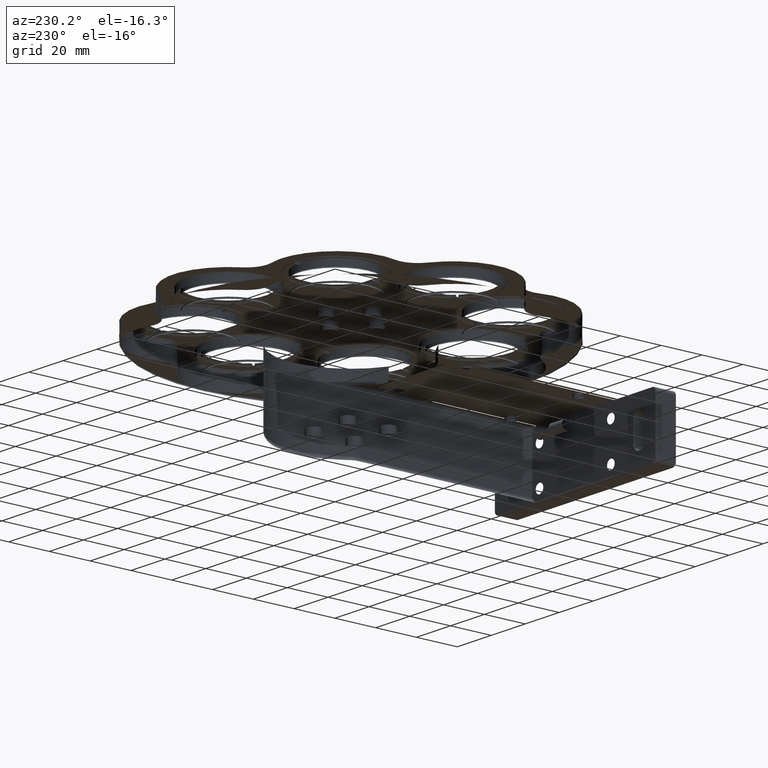
[diagram: clean part render]
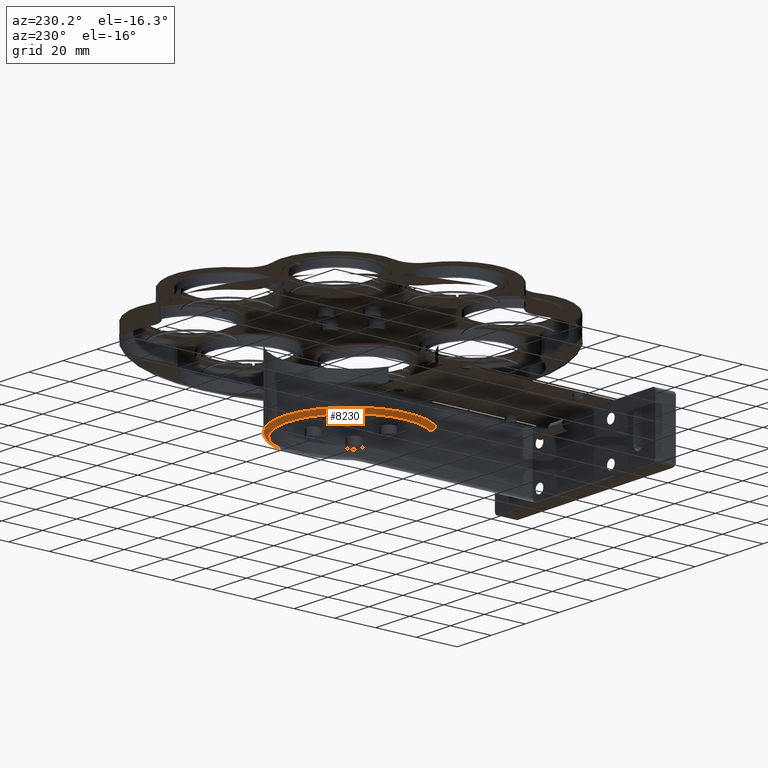
[diagram: same view with one face highlighted and labeled with its STEP entity id]
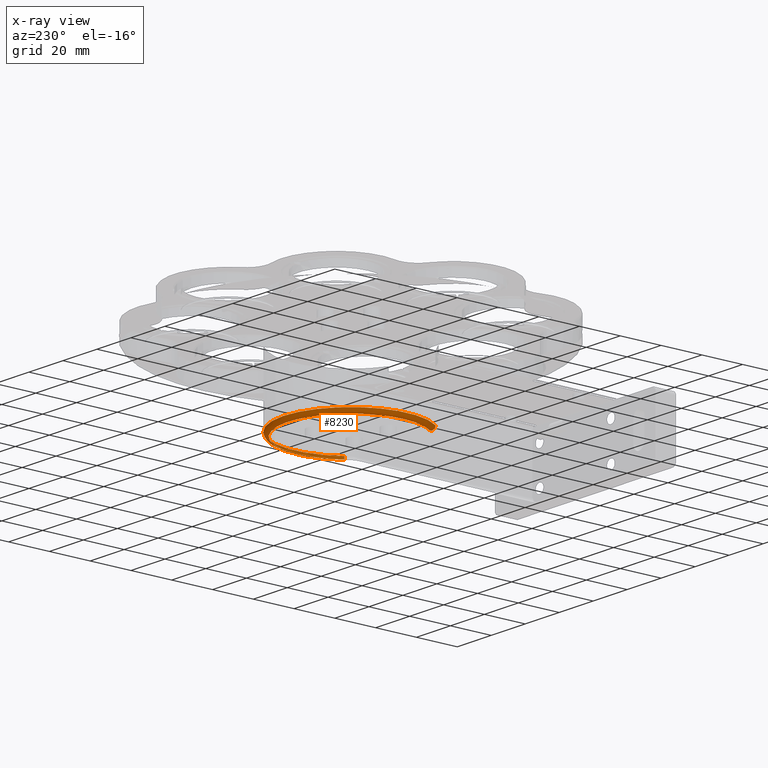
[diagram: x-ray of the same camera — body ghosted, the highlighted face saturated]
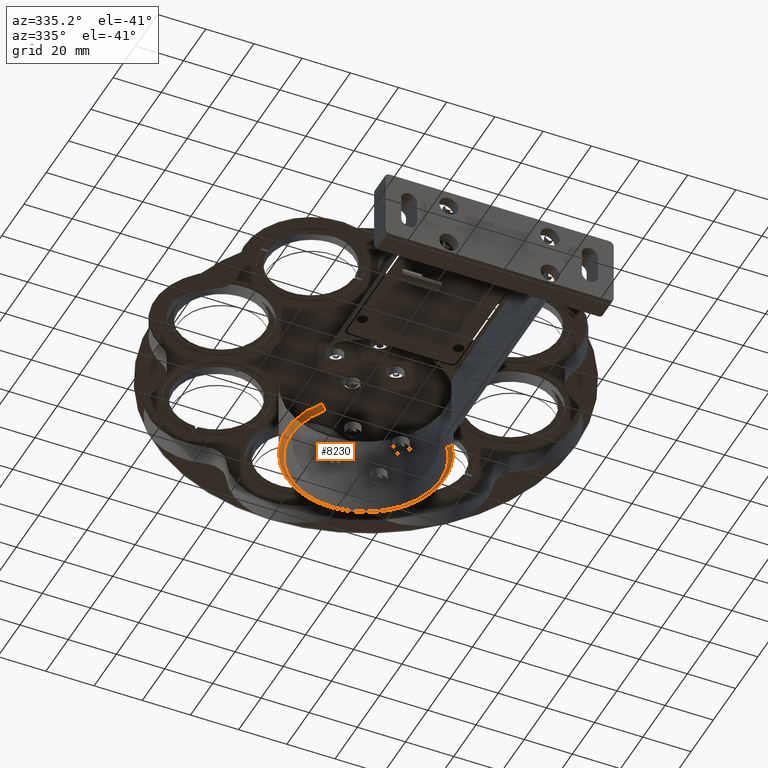
[diagram: same view with one face highlighted and labeled with its STEP entity id]
A machine part, auxiliary view. The second image highlights one B-rep face of the part: STEP entity #8230.
The next image is the same camera in x-ray: the body ghosted, the highlighted face saturated — about 0% of this face is hidden behind the body in this view.
A second angle (auxiliary view) of the same face is appended — the face is thin or edge-on in the first view.
In plain terms, the highlighted face is a freeform B-spline surface patch.
Its self-contained STEP definition (entity closure, byte-faithful):
#119 = CARTESIAN_POINT ( 'NONE',  ( 10.53283271438144375, 95.22578763127295076, 135.2499999999716636 ) ) ;
#194 = CARTESIAN_POINT ( 'NONE',  ( -46.96159308205115224, 43.05509610130579290, 134.0784271247178481 ) ) ;
#281 = CARTESIAN_POINT ( 'NONE',  ( -46.28729193400194220, 43.53635430929266192, 133.2499999999716920 ) ) ;
#582 = CARTESIAN_POINT ( 'NONE',  ( 10.45445355062458859, 67.45853934313157652, 133.2499999999716920 ) ) ;
#668 = CARTESIAN_POINT ( 'NONE',  ( 8.929555881776781945, 51.23386335644919853, 133.2499999999716920 ) ) ;
#739 = CARTESIAN_POINT ( 'NONE',  ( -3.025790631562344402, 88.09927463350501853, 133.2499999999716067 ) ) ;
#820 = CARTESIAN_POINT ( 'NONE',  ( -12.74180319100221226, 92.34711125301598145, 133.2499999999716636 ) ) ;
#895 = CARTESIAN_POINT ( 'NONE',  ( -30.69106197044605011, 91.36283979535028266, 133.2499999999716636 ) ) ;
#976 = CARTESIAN_POINT ( 'NONE',  ( -32.48593965831978636, 90.66369521972859502, 133.2499999999716636 ) ) ;
#1059 = CARTESIAN_POINT ( 'NONE',  ( -14.24416921678018966, 92.66758612309125454, 133.2499999999717204 ) ) ;
#1140 = CARTESIAN_POINT ( 'NONE',  ( -48.83955461651328989, 73.84949394082089213, 133.2499999999716351 ) ) ;
#1224 = CARTESIAN_POINT ( 'NONE',  ( -38.85560849494864044, 87.00178921112208741, 133.2499999999716351 ) ) ;
#1306 = CARTESIAN_POINT ( 'NONE',  ( -43.84868051437328518, 82.20261935534061593, 133.2499999999716636 ) ) ;
#1346 = CARTESIAN_POINT ( 'NONE',  ( 6.759337150506981473, 43.05509610130579290, 135.2499999999716636 ) ) ;
#1350 = B_SPLINE_CURVE_WITH_KNOTS ( 'NONE', 3,
 ( #3927, #5476, #10445, #8897, #13873, #14354, #5707, #11984, #3108, #668, #14587, #3186, #10756, #3259, #15723, #8069, #2123, #10681, #9308, #10831 ),
 .UNSPECIFIED., .F., .F.,
 ( 4, 1, 1, 1, 2, 2, 2, 1, 1, 1, 2, 2, 4 ),
 ( 0.000000000000000000, 0.1250000000000024147, 0.1875000000000031364, 0.2187500000000030531, 0.2343750000000035250, 0.2500000000000039968, 0.5000000000000073275, 0.6250000000000085487, 0.6875000000000091038, 0.7187500000000098810, 0.7343750000000097700, 0.7500000000000095479, 1.000000000000000000 ),
 .UNSPECIFIED. ) ;
#1386 = CARTESIAN_POINT ( 'NONE',  ( -50.57820341190375757, 67.89577162592422610, 133.2499999999716636 ) ) ;
#1469 = CARTESIAN_POINT ( 'NONE',  ( -45.90074052123406290, 79.41255193765323384, 133.2499999999716351 ) ) ;
#1510 = CARTESIAN_POINT ( 'NONE',  ( -63.63672725278667741, 67.84501847192315438, 133.2499999999716351 ) ) ;
#1522 = DIRECTION ( 'NONE',  ( 0.8139534883720920266, 0.5809300463626432265, 0.000000000000000000 ) ) ;
#1586 = CARTESIAN_POINT ( 'NONE',  ( -20.10112796577209693, 95.22578763127295076, 135.2499999999716636 ) ) ;
#1956 = CARTESIAN_POINT ( 'NONE',  ( 10.38705379943201201, 67.83575431183284365, 133.2499999999716351 ) ) ;
#2034 = CARTESIAN_POINT ( 'NONE',  ( -1.600496397098782220, 87.11037255496219700, 133.2499999999716636 ) ) ;
#2115 = CARTESIAN_POINT ( 'NONE',  ( -8.660985408636996397, 91.03766179045069862, 133.2499999999716636 ) ) ;
#2123 = CARTESIAN_POINT ( 'NONE',  ( 10.51655650581615298, 57.37117905919282634, 133.2499999999716920 ) ) ;
#2192 = CARTESIAN_POINT ( 'NONE',  ( -13.59807745350464003, 92.53791104300329096, 133.2499999999716920 ) ) ;
#2271 = CARTESIAN_POINT ( 'NONE',  ( -7.843110587115339705, 90.70149275079430140, 133.2499999999716636 ) ) ;
#2274 = CARTESIAN_POINT ( 'NONE',  ( -51.10112796577210048, 62.22578763127295787, 133.2499999999716636 ) ) ;
#2354 = CARTESIAN_POINT ( 'NONE',  ( -50.41325137751076824, 68.72883814359609289, 133.2499999999716351 ) ) ;
#2393 = ORIENTED_EDGE ( 'NONE', *, *, #2939, .T. ) ;
#2444 = CARTESIAN_POINT ( 'NONE',  ( -47.84268703015010971, 48.39048035360452360, 133.2499999999716351 ) ) ;
#2521 = CARTESIAN_POINT ( 'NONE',  ( -45.97461496800976732, 79.30112496547586431, 133.2499999999716636 ) ) ;
#2939 = EDGE_CURVE ( 'NONE', #13502, #15877, #6975, .T. ) ;
#3028 = CARTESIAN_POINT ( 'NONE',  ( 10.39207828771551334, 67.80836858494723174, 133.2499999999716636 ) ) ;
#3084 = CARTESIAN_POINT ( 'NONE',  ( -20.10112796577209693, 62.22578763127295787, 135.2499999999716636 ) ) ;
#3098 = CARTESIAN_POINT ( 'NONE',  ( 8.768345652609726315, 73.51979007888439810, 133.2499999999716351 ) ) ;
#3108 = CARTESIAN_POINT ( 'NONE',  ( 8.320619187422032326, 49.74337015299662568, 133.2499999999716920 ) ) ;
#3177 = CARTESIAN_POINT ( 'NONE',  ( 10.19844743785179553, 68.85505647098052862, 133.2499999999716920 ) ) ;
#3186 = CARTESIAN_POINT ( 'NONE',  ( 9.991310511064273925, 54.70311100467456100, 133.2499999999716636 ) ) ;
#3252 = CARTESIAN_POINT ( 'NONE',  ( -18.20536870244568917, 93.22575519946924771, 133.2499999999716351 ) ) ;
#3259 = CARTESIAN_POINT ( 'NONE',  ( 10.41677255784004608, 56.77322680005310218, 133.2499999999716920 ) ) ;
#3328 = CARTESIAN_POINT ( 'NONE',  ( -24.92528174707842581, 92.84977955551802609, 133.2499999999716636 ) ) ;
#3408 = CARTESIAN_POINT ( 'NONE',  ( -7.006695525339795338, 90.33325524480753188, 133.2499999999716636 ) ) ;
#3424 = ORIENTED_EDGE ( 'NONE', *, *, #9761, .F. ) ;
#3488 = CARTESIAN_POINT ( 'NONE',  ( -31.45361676834384212, 91.07231167174975894, 133.2499999999716920 ) ) ;
#3566 = CARTESIAN_POINT ( 'NONE',  ( -31.30736171983325278, 91.12954848688157483, 133.2499999999716920 ) ) ;
#3737 = CARTESIAN_POINT ( 'NONE',  ( -44.98571288952099678, 80.72641919987306380, 133.2499999999716920 ) ) ;
#3927 = CARTESIAN_POINT ( 'NONE',  ( 5.131430173762794311, 44.21695619403107003, 133.2499999999716636 ) ) ;
#3984 = CARTESIAN_POINT ( 'NONE',  ( -47.97695233306718876, 48.66300612615909671, 133.2499999999716920 ) ) ;
#4148 = CARTESIAN_POINT ( 'NONE',  ( 5.131430173762794311, 44.21695619403107003, 133.2499999999716636 ) ) ;
#4478 = CARTESIAN_POINT ( 'NONE',  ( -0.1242962416067872611, 85.97334017979459020, 133.2499999999716636 ) ) ;
#4554 = CARTESIAN_POINT ( 'NONE',  ( -21.04900759743532390, 93.22580384717484492, 133.2499999999716920 ) ) ;
#4632 = CARTESIAN_POINT ( 'NONE',  ( 5.988148164028827658, 78.96957192232073908, 133.2499999999716636 ) ) ;
#4719 = CARTESIAN_POINT ( 'NONE',  ( -22.46502414927979530, 93.16112431171544017, 133.2499999999716636 ) ) ;
#4799 = CARTESIAN_POINT ( 'NONE',  ( -14.43114671027998419, 92.70286358434030660, 133.2499999999716920 ) ) ;
#4802 = CARTESIAN_POINT ( 'NONE',  ( -50.92143966741855365, 58.85078834639730871, 133.2499999999716636 ) ) ;
#4836 = CARTESIAN_POINT ( 'NONE',  ( 5.131430173762795199, 44.21695619403107003, 135.2499999999716636 ) ) ;
#4875 = CARTESIAN_POINT ( 'NONE',  ( -50.56049255743268844, 67.99016998077738094, 133.2499999999716636 ) ) ;
#4958 = CARTESIAN_POINT ( 'NONE',  ( -49.77948166514816819, 71.27989605620926739, 133.2499999999716351 ) ) ;
#4961 = CARTESIAN_POINT ( 'NONE',  ( -50.74957915145942167, 57.56933972803486910, 133.2499999999716636 ) ) ;
#5078 = CARTESIAN_POINT ( 'NONE',  ( -64.75778128024408886, 67.98971525957028916, 134.0784271247178481 ) ) ;
#5157 = CARTESIAN_POINT ( 'NONE',  ( 6.085036002457757220, 43.53635430929266192, 133.2499999999716920 ) ) ;
#5188 = EDGE_CURVE ( 'NONE', #9828, #12411, #7028, .T. ) ;
#5476 = CARTESIAN_POINT ( 'NONE',  ( 5.594616343713482820, 44.86593622382579127, 133.2499999999716351 ) ) ;
#5543 = CARTESIAN_POINT ( 'NONE',  ( 9.329061003959242981, 71.98887158467937297, 133.2499999999716636 ) ) ;
#5699 = CARTESIAN_POINT ( 'NONE',  ( -14.39848965176672735, 92.69677163124522679, 133.2499999999716920 ) ) ;
#5707 = CARTESIAN_POINT ( 'NONE',  ( 7.505699434930819258, 48.12355445157497513, 133.2499999999716920 ) ) ;
#5742 = CARTESIAN_POINT ( 'NONE',  ( -51.10112796577210048, 62.22578763127295787, 133.2499999999716636 ) ) ;
#5775 = CARTESIAN_POINT ( 'NONE',  ( -8.477421656250941240, 90.96421428203346693, 133.2499999999716636 ) ) ;
#5845 = CARTESIAN_POINT ( 'NONE',  ( -9.624801912299050244, 91.41924652445074173, 133.2499999999716636 ) ) ;
#5922 = CARTESIAN_POINT ( 'NONE',  ( -36.67962692797878077, 88.42091238416630006, 133.2499999999716920 ) ) ;
#6010 = CARTESIAN_POINT ( 'NONE',  ( -16.32437770679559108, 93.05324399436051408, 133.2499999999716920 ) ) ;
#6022 = CIRCLE ( 'NONE', #8106, 33.00000000000000000 ) ;
#6093 = CARTESIAN_POINT ( 'NONE',  ( -49.37797212430316307, 52.00236129338967572, 133.2499999999716920 ) ) ;
#6170 = CARTESIAN_POINT ( 'NONE',  ( -46.01216582014816225, 79.24408169897341736, 133.2499999999716351 ) ) ;
#6173 = CARTESIAN_POINT ( 'NONE',  ( -46.26026622427583845, 45.51520737730713506, 133.2499999999716920 ) ) ;
#6257 = CARTESIAN_POINT ( 'NONE',  ( -47.88811971279682211, 48.48194363583876054, 133.2499999999717204 ) ) ;
#6294 = CARTESIAN_POINT ( 'NONE',  ( 24.55552534869991277, 67.98971525957031758, 135.2499999999716636 ) ) ;
#6333 = CARTESIAN_POINT ( 'NONE',  ( -45.78942824983533200, 79.57928438883311628, 133.2499999999716636 ) ) ;
#6337 = CARTESIAN_POINT ( 'NONE',  ( -50.79288607099013575, 57.86387279561542840, 133.2499999999716636 ) ) ;
#6414 = CARTESIAN_POINT ( 'NONE',  ( -46.62115670798456080, 78.31262258203565807, 133.2499999999716636 ) ) ;
#6532 = CARTESIAN_POINT ( 'NONE',  ( 21.84906151145918329, 67.64038631240077848, 133.2499999999716636 ) ) ;
#6614 = CARTESIAN_POINT ( 'NONE',  ( -50.73508864592565715, 95.22578763127295076, 134.0784271247178481 ) ) ;
#6673 = CARTESIAN_POINT ( 'NONE',  ( 10.52285154317308624, 67.05000850975066840, 133.2499999999716636 ) ) ;
#6723 = VERTEX_POINT ( 'NONE', #5742 ) ;
#6829 = CARTESIAN_POINT ( 'NONE',  ( 10.89887203422790307, 63.17375490005802874, 133.2499999999716636 ) ) ;
#6905 = CARTESIAN_POINT ( 'NONE',  ( 3.332185119453405342, 82.63304241621108304, 133.2499999999716636 ) ) ;
#6975 = CIRCLE ( 'NONE', #13505, 2.000000000000000000 ) ;
#6981 = CARTESIAN_POINT ( 'NONE',  ( 6.093996787135372628, 78.80428659346300435, 133.2499999999717204 ) ) ;
#7028 = CIRCLE ( 'NONE', #14851, 1.999999999999998224 ) ;
#7061 = CARTESIAN_POINT ( 'NONE',  ( -26.73039680548950514, 92.52536303491056913, 133.2499999999716351 ) ) ;
#7140 = CARTESIAN_POINT ( 'NONE',  ( -11.04701954096300121, 91.90414133062988356, 133.2499999999716636 ) ) ;
#7220 = CARTESIAN_POINT ( 'NONE',  ( 6.807977673387280326, 77.63337942516729129, 133.2499999999716920 ) ) ;
#7300 = CARTESIAN_POINT ( 'NONE',  ( -50.92861677274335364, 66.00236258406333434, 133.2499999999716067 ) ) ;
#7345 = DIRECTION ( 'NONE',  ( 0.8139534883720940250, -0.5809300463626403399, 0.000000000000000000 ) ) ;
#7389 = CARTESIAN_POINT ( 'NONE',  ( -48.10883597124076516, 48.93515317433934797, 133.2499999999716351 ) ) ;
#7500 = CARTESIAN_POINT ( 'NONE',  ( 23.43447132124246934, 67.84501847192316859, 133.2499999999716351 ) ) ;
#7548 = CARTESIAN_POINT ( 'NONE',  ( -50.11629343188322139, 54.30790622517498178, 133.2499999999717204 ) ) ;
#7586 = CARTESIAN_POINT ( 'NONE',  ( -46.96159308205115934, 43.05509610130578579, 135.2499999999716636 ) ) ;
#7628 = CARTESIAN_POINT ( 'NONE',  ( -48.91300212494954280, 73.66593018840580953, 133.2499999999716920 ) ) ;
#7668 = CARTESIAN_POINT ( 'NONE',  ( 5.131430173762793423, 44.21695619403107003, 133.2499999999716636 ) ) ;
#7715 = CARTESIAN_POINT ( 'NONE',  ( -48.96512211909123380, 50.86729483388921835, 133.2499999999716636 ) ) ;
#7832 = CARTESIAN_POINT ( 'NONE',  ( 9.763802291173943715, 94.39736050652675203, 133.2499999999716351 ) ) ;
#8058 = CARTESIAN_POINT ( 'NONE',  ( 8.745396074703897682, 73.57827643384412397, 133.2499999999716351 ) ) ;
#8069 = CARTESIAN_POINT ( 'NONE',  ( 10.50040282755328214, 57.27033899112391424, 133.2499999999717204 ) ) ;
#8106 = AXIS2_PLACEMENT_3D ( 'NONE', #3084, #14173, #10811 ) ;
#8219 = CARTESIAN_POINT ( 'NONE',  ( -25.68370348491784938, 92.71899489033654618, 133.2499999999716636 ) ) ;
#8230 = ADVANCED_FACE ( 'NONE', ( #12498 ), #10669, .F. ) ;
#8299 = CARTESIAN_POINT ( 'NONE',  ( -2.747631208189036833, 87.91408791531755185, 133.2499999999716636 ) ) ;
#8384 = CARTESIAN_POINT ( 'NONE',  ( -8.568537507042018220, 91.00078474376401516, 133.2499999999716636 ) ) ;
#8461 = CARTESIAN_POINT ( 'NONE',  ( 5.917215619706174934, 79.07957289167768522, 133.2499999999716636 ) ) ;
#8537 = CARTESIAN_POINT ( 'NONE',  ( -4.014293015135691256, 88.74581637357680108, 133.2499999999716351 ) ) ;
#8631 = CARTESIAN_POINT ( 'NONE',  ( -50.83446288470491226, 58.15971952843825221, 133.2499999999716636 ) ) ;
#8708 = CARTESIAN_POINT ( 'NONE',  ( -51.10112796577210048, 62.22578763127295787, 133.2499999999716636 ) ) ;
#8741 = CARTESIAN_POINT ( 'NONE',  ( -50.73508864592563583, 95.22578763127295076, 135.2499999999716636 ) ) ;
#8807 = CARTESIAN_POINT ( 'NONE',  ( 10.89887203422790307, 62.22578763127295787, 133.2499999999716636 ) ) ;
#8821 = CARTESIAN_POINT ( 'NONE',  ( -20.10112796577208982, 93.22578763127295076, 133.2499999999716636 ) ) ;
#8897 = CARTESIAN_POINT ( 'NONE',  ( 6.945810747494057580, 47.06843496664491511, 133.2499999999716351 ) ) ;
#8909 = CARTESIAN_POINT ( 'NONE',  ( -49.96605822271813935, 94.39736050652675203, 133.2499999999716351 ) ) ;
#8951 = CARTESIAN_POINT ( 'NONE',  ( -48.20859557918679172, 75.32022007187100598, 133.2499999999716636 ) ) ;
#9051 = CARTESIAN_POINT ( 'NONE',  ( 8.802632889833654772, 73.43202138533204959, 133.2499999999716636 ) ) ;
#9072 = CARTESIAN_POINT ( 'NONE',  ( -45.33368610530698817, 44.21695619403107003, 133.2499999999716636 ) ) ;
#9219 = CARTESIAN_POINT ( 'NONE',  ( 10.41848564074994954, 67.66264428964835531, 133.2499999999716351 ) ) ;
#9308 = CARTESIAN_POINT ( 'NONE',  ( 10.89887203422790307, 60.63079332034373436, 133.2499999999716920 ) ) ;
#9453 = CARTESIAN_POINT ( 'NONE',  ( -31.39513041338473798, 91.09526124965645977, 133.2499999999716636 ) ) ;
#9522 = ORIENTED_EDGE ( 'NONE', *, *, #15117, .F. ) ;
#9524 = CARTESIAN_POINT ( 'NONE',  ( -8.265317988176791530, 90.87792201907288359, 133.2499999999716920 ) ) ;
#9608 = CARTESIAN_POINT ( 'NONE',  ( -3.082833898063749523, 88.13682548564328556, 133.2499999999716351 ) ) ;
#9693 = CARTESIAN_POINT ( 'NONE',  ( -36.84491225682961613, 88.31506376106561618, 133.2499999999716636 ) ) ;
#9761 = EDGE_CURVE ( 'NONE', #13381, #6723, #9792, .T. ) ;
#9771 = CARTESIAN_POINT ( 'NONE',  ( -14.33674561627660715, 92.68515222293221711, 133.2499999999716636 ) ) ;
#9792 = B_SPLINE_CURVE_WITH_KNOTS ( 'NONE', 3,
 ( #15409, #6829, #14107, #14341, #6673, #582, #9219, #14184, #3028, #1956, #3177, #15244, #5543, #10516, #14266, #9051, #3098, #8058, #13041, #13205, #11893, #7220, #10907, #6981, #4632, #8461, #15714, #14490, #6905, #10824, #4478, #2034, #15875, #8299, #11976, #739, #9608, #8537, #14578, #3408, #2271, #9524, #5775, #8384, #12215, #2115, #5845, #7140, #820, #2192, #10746, #1059, #9771, #5699, #4799, #6010, #3252, #4554, #4719, #15791, #3328, #10673, #13522, #13283, #8219, #14736, #7061, #12055, #13367, #895, #15642, #3566, #9453, #3488, #12133, #976, #10988, #14420, #13443, #5922, #9693, #14660, #15956, #1224, #12376, #14898, #1306, #3737, #11143, #6333, #1469, #2521, #6170, #6414, #10095, #8951, #15062, #9935, #1140, #16117, #13679, #7628, #11310, #4958, #13604, #2354, #11389, #16036, #4875, #9849, #1386, #7300, #13759, #8708 ),
 .UNSPECIFIED., .F., .F.,
 ( 4, 1, 1, 1, 1, 1, 2, 2, 1, 1, 1, 1, 1, 2, 2, 1, 1, 1, 1, 2, 2, 2, 1, 1, 1, 1, 2, 2, 1, 1, 1, 1, 1, 2, 2, 1, 1, 1, 1, 1, 2, 2, 2, 1, 1, 1, 1, 1, 2, 2, 1, 1, 1, 1, 1, 2, 2, 1, 1, 1, 1, 2, 2, 2, 1, 1, 1, 1, 2, 2, 1, 1, 1, 1, 1, 2, 2, 1, 1, 1, 1, 1, 2, 2, 4 ),
 ( 0.000000000000000000, 0.03124999999999455991, 0.04687499999999206884, 0.05468749999999081984, 0.05859374999999019534, 0.06054687499999011208, 0.06152343749998984840, 0.06249999999998959166, 0.09374999999999006350, 0.1093749999999902994, 0.1171874999999902162, 0.1210937499999901745, 0.1230468749999901468, 0.1240234374999901468, 0.1249999999999901468, 0.1562499999999890365, 0.1718749999999886757, 0.1796874999999884814, 0.1835937499999883704, 0.1855468749999881484, 0.1874999999999879263, 0.2499999999999863998, 0.2812499999999856226, 0.2968749999999851230, 0.3046874999999848455, 0.3085937499999847344, 0.3105468749999846789, 0.3124999999999846234, 0.3437499999999810707, 0.3593749999999792943, 0.3671874999999784617, 0.3710937499999781286, 0.3730468749999779066, 0.3740234374999779066, 0.3749999999999779066, 0.4062499999999815148, 0.4218749999999833467, 0.4296874999999842348, 0.4335937499999846234, 0.4355468749999848455, 0.4365234374999849565, 0.4374999999999850675, 0.4999999999999936717, 0.5312499999999980016, 0.5468750000000000000, 0.5546875000000011102, 0.5585937500000015543, 0.5605468750000018874, 0.5615234375000021094, 0.5625000000000022204, 0.5937500000000071054, 0.6093750000000096589, 0.6171875000000109912, 0.6210937500000116573, 0.6230468750000119904, 0.6240234375000121014, 0.6250000000000121014, 0.6562500000000177636, 0.6718750000000205391, 0.6796875000000218714, 0.6835937500000223155, 0.6855468750000226485, 0.6875000000000229816, 0.7500000000000357492, 0.7812500000000420775, 0.7968750000000452971, 0.8046875000000468514, 0.8085937500000474065, 0.8105468750000477396, 0.8125000000000480727, 0.8437500000000491829, 0.8593750000000498490, 0.8671875000000500711, 0.8710937500000500711, 0.8730468750000500711, 0.8740234375000499600, 0.8750000000000497380, 0.9062500000000350830, 0.9218750000000277556, 0.9296875000000239808, 0.9335937500000218714, 0.9355468750000206501, 0.9365234375000200950, 0.9375000000000194289, 1.000000000000000000 ),
 .UNSPECIFIED. ) ;
#9813 = DIRECTION ( 'NONE',  ( 0.5809300463626413391, 0.8139534883720932479, 0.000000000000000000 ) ) ;
#9828 = VERTEX_POINT ( 'NONE', #10969 ) ;
#9849 = CARTESIAN_POINT ( 'NONE',  ( -50.57211196574505152, 67.92842594528283939, 133.2499999999717204 ) ) ;
#9935 = CARTESIAN_POINT ( 'NONE',  ( -48.75326235353457349, 74.06159760892006716, 133.2499999999716636 ) ) ;
#10052 = CARTESIAN_POINT ( 'NONE',  ( -20.10112796577210048, 94.39736050652679467, 133.2499999999716920 ) ) ;
#10095 = CARTESIAN_POINT ( 'NONE',  ( -47.41060468945490669, 76.96105123408791826, 133.2499999999716920 ) ) ;
#10132 = CARTESIAN_POINT ( 'NONE',  ( 8.676229036796389238, 93.22578763127295076, 133.2499999999716636 ) ) ;
#10208 = CARTESIAN_POINT ( 'NONE',  ( -45.33368610530696685, 44.21695619403104160, 133.2499999999716636 ) ) ;
#10445 = CARTESIAN_POINT ( 'NONE',  ( 6.250035433049941247, 45.86323102919521943, 133.2499999999716920 ) ) ;
#10516 = CARTESIAN_POINT ( 'NONE',  ( 9.035924198294758014, 72.81572163593938285, 133.2499999999716351 ) ) ;
#10669 =( BOUNDED_SURFACE ( )  B_SPLINE_SURFACE ( 3, 3, ( 
 ( #1346, #6294, #119, #1586, #8741, #15188, #7586 ),
 ( #13716, #11346, #12663, #11512, #6614, #5078, #194 ),
 ( #5157, #7500, #7832, #10052, #8909, #1510, #281 ),
 ( #7668, #6532, #10132, #8821, #13799, #15017, #9072 ) ),
 .UNSPECIFIED., .F., .F., .F. ) 
 B_SPLINE_SURFACE_WITH_KNOTS ( ( 4, 4 ),
 ( 4, 3, 4 ),
 ( 0.000000000000000000, 1.000000000000000000 ),
 ( 0.000000000000000000, 0.5000000000000000000, 1.000000000000000000 ),
 .UNSPECIFIED. ) 
 GEOMETRIC_REPRESENTATION_ITEM ( )  RATIONAL_B_SPLINE_SURFACE ( (
 ( 1.000000000000000000, 0.6384999376068964949, 0.6384999376068964949, 1.000000000000000000, 0.6384999376068964949, 0.6384999376068964949, 1.000000000000000000),
 ( 0.8047378541243646044, 0.5138250696483145363, 0.5138250696483145363, 0.8047378541243646044, 0.5138250696483145363, 0.5138250696483145363, 0.8047378541243646044),
 ( 0.8047378541243646044, 0.5138250696483145363, 0.5138250696483145363, 0.8047378541243646044, 0.5138250696483145363, 0.5138250696483145363, 0.8047378541243646044),
 ( 1.000000000000000000, 0.6384999376068964949, 0.6384999376068964949, 1.000000000000000000, 0.6384999376068964949, 0.6384999376068964949, 1.000000000000000000) ) ) 
 REPRESENTATION_ITEM ( '' )  SURFACE ( )  );
#10673 = CARTESIAN_POINT ( 'NONE',  ( -25.33384373271743328, 92.78137579872314689, 133.2499999999716636 ) ) ;
#10681 = CARTESIAN_POINT ( 'NONE',  ( 10.77653106513614212, 59.04541869105951690, 133.2499999999716636 ) ) ;
#10746 = CARTESIAN_POINT ( 'NONE',  ( -14.02843519412655660, 92.62563964519553394, 133.2499999999716636 ) ) ;
#10756 = CARTESIAN_POINT ( 'NONE',  ( 10.28832393215446217, 56.07998902913976735, 133.2499999999716636 ) ) ;
#10811 = DIRECTION ( 'NONE',  ( 1.000000000000000000, 0.000000000000000000, 0.000000000000000000 ) ) ;
#10824 = CARTESIAN_POINT ( 'NONE',  ( 1.062680816789609128, 84.90262556397840399, 133.2499999999716920 ) ) ;
#10831 = CARTESIAN_POINT ( 'NONE',  ( 10.89887203422790307, 62.22578763127295787, 133.2499999999716636 ) ) ;
#10907 = CARTESIAN_POINT ( 'NONE',  ( 6.337125554075333511, 78.41663370237235142, 133.2499999999716636 ) ) ;
#10969 = CARTESIAN_POINT ( 'NONE',  ( 6.759337150506983249, 43.05509610130579290, 135.2499999999716636 ) ) ;
#10988 = CARTESIAN_POINT ( 'NONE',  ( -33.91041722523218738, 90.01497585072416996, 133.2499999999716351 ) ) ;
#10991 = CARTESIAN_POINT ( 'NONE',  ( -51.05525010236267747, 60.23596508113880077, 133.2499999999716351 ) ) ;
#11143 = CARTESIAN_POINT ( 'NONE',  ( -45.52619540792547070, 79.96547072531687661, 133.2499999999716920 ) ) ;
#11228 = CARTESIAN_POINT ( 'NONE',  ( -50.48651957109487398, 55.87484798958656995, 133.2499999999717204 ) ) ;
#11310 = CARTESIAN_POINT ( 'NONE',  ( -49.29458685896081960, 72.70211368481871261, 133.2499999999716351 ) ) ;
#11346 = CARTESIAN_POINT ( 'NONE',  ( 24.55552534869990922, 67.98971525957031758, 134.0784271247178481 ) ) ;
#11389 = CARTESIAN_POINT ( 'NONE',  ( -50.50097997969911745, 68.29848040294830014, 133.2499999999716351 ) ) ;
#11512 = CARTESIAN_POINT ( 'NONE',  ( -20.10112796577210048, 95.22578763127295076, 134.0784271247178481 ) ) ;
#11568 = ORIENTED_EDGE ( 'NONE', *, *, #5188, .F. ) ;
#11607 = DIRECTION ( 'NONE',  ( 0.5809300463626420052, -0.8139534883720930258, -0.000000000000000000 ) ) ;
#11893 = CARTESIAN_POINT ( 'NONE',  ( 7.688060253739338101, 76.03507689066202602, 133.2499999999716636 ) ) ;
#11976 = CARTESIAN_POINT ( 'NONE',  ( -2.914363659378444105, 88.02540018672402766, 133.2499999999716920 ) ) ;
#11984 = CARTESIAN_POINT ( 'NONE',  ( 7.550356286333355982, 48.21131347729453154, 133.2499999999716636 ) ) ;
#12055 = CARTESIAN_POINT ( 'NONE',  ( -28.19296763815038886, 92.18081613595609269, 133.2499999999716920 ) ) ;
#12133 = CARTESIAN_POINT ( 'NONE',  ( -31.48163034668612070, 91.06127276872325638, 133.2499999999716636 ) ) ;
#12195 = EDGE_CURVE ( 'NONE', #6723, #15877, #15753, .T. ) ;
#12215 = CARTESIAN_POINT ( 'NONE',  ( -8.629329025071472259, 91.02507351009968772, 133.2499999999716636 ) ) ;
#12218 = CARTESIAN_POINT ( 'NONE',  ( -51.10112796577211469, 61.42846930890006973, 133.2499999999716920 ) ) ;
#12376 = CARTESIAN_POINT ( 'NONE',  ( -40.50838275061931171, 85.65910071661009795, 133.2499999999716920 ) ) ;
#12379 = CARTESIAN_POINT ( 'NONE',  ( -48.40700741468897661, 49.57403614232492117, 133.2499999999716636 ) ) ;
#12411 = VERTEX_POINT ( 'NONE', #4148 ) ;
#12498 = FACE_OUTER_BOUND ( 'NONE', #12939, .T. ) ;
#12565 = ORIENTED_EDGE ( 'NONE', *, *, #14520, .F. ) ;
#12630 = CARTESIAN_POINT ( 'NONE',  ( -50.76421240635923482, 57.66671399989597546, 133.2499999999716636 ) ) ;
#12663 = CARTESIAN_POINT ( 'NONE',  ( 10.53283271438144553, 95.22578763127295076, 134.0784271247178481 ) ) ;
#12939 = EDGE_LOOP ( 'NONE', ( #2393, #15730, #3424, #12565, #11568, #9522 ) ) ;
#13041 = CARTESIAN_POINT ( 'NONE',  ( 8.734357171677149978, 73.60629001218823930, 133.2499999999716636 ) ) ;
#13205 = CARTESIAN_POINT ( 'NONE',  ( 8.336779622717948257, 74.61059932378010728, 133.2499999999716636 ) ) ;
#13283 = CARTESIAN_POINT ( 'NONE',  ( -25.62541304550652299, 92.72960935376104885, 133.2499999999716067 ) ) ;
#13367 = CARTESIAN_POINT ( 'NONE',  ( -29.86421191919139773, 91.65597660102223188, 133.2499999999716636 ) ) ;
#13381 = VERTEX_POINT ( 'NONE', #8807 ) ;
#13443 = CARTESIAN_POINT ( 'NONE',  ( -36.29197403690257318, 88.66404115109403961, 133.2499999999716636 ) ) ;
#13502 = VERTEX_POINT ( 'NONE', #15571 ) ;
#13505 = AXIS2_PLACEMENT_3D ( 'NONE', #15363, #11607, #1522 ) ;
#13522 = CARTESIAN_POINT ( 'NONE',  ( -25.53796605260898289, 92.74540467417261880, 133.2499999999716067 ) ) ;
#13604 = CARTESIAN_POINT ( 'NONE',  ( -50.22245158752946281, 69.58511240613825066, 133.2499999999716636 ) ) ;
#13679 = CARTESIAN_POINT ( 'NONE',  ( -48.90041384459320284, 73.69758657198143226, 133.2499999999717204 ) ) ;
#13716 = CARTESIAN_POINT ( 'NONE',  ( 6.759337150506982361, 43.05509610130579290, 134.0784271247178481 ) ) ;
#13759 = CARTESIAN_POINT ( 'NONE',  ( -51.10112796577211469, 64.12207770913778404, 133.2499999999716636 ) ) ;
#13762 = CARTESIAN_POINT ( 'NONE',  ( -47.08167812260502672, 46.87670013203619135, 133.2499999999716636 ) ) ;
#13799 = CARTESIAN_POINT ( 'NONE',  ( -48.87848496834057244, 93.22578763127295076, 133.2499999999716636 ) ) ;
#13873 = CARTESIAN_POINT ( 'NONE',  ( 7.276478332270676752, 47.68146026816611283, 133.2499999999717204 ) ) ;
#14107 = CARTESIAN_POINT ( 'NONE',  ( 10.83418033684212745, 64.58983717974385286, 133.2499999999716636 ) ) ;
#14173 = DIRECTION ( 'NONE',  ( -0.000000000000000000, -0.000000000000000000, -1.000000000000000000 ) ) ;
#14184 = CARTESIAN_POINT ( 'NONE',  ( 10.40269176931787065, 67.75008345168978963, 133.2499999999716920 ) ) ;
#14266 = CARTESIAN_POINT ( 'NONE',  ( 8.881676535912372827, 73.22695363925377876, 133.2499999999716920 ) ) ;
#14341 = CARTESIAN_POINT ( 'NONE',  ( 10.64549621946695446, 66.23166308160016058, 133.2499999999716636 ) ) ;
#14354 = CARTESIAN_POINT ( 'NONE',  ( 7.414502995936632423, 47.94641896870297160, 133.2499999999716636 ) ) ;
#14420 = CARTESIAN_POINT ( 'NONE',  ( -35.50871975971970329, 89.13489327038718102, 133.2499999999716636 ) ) ;
#14490 = CARTESIAN_POINT ( 'NONE',  ( 4.674873614069651850, 80.98026816043615383, 133.2499999999716351 ) ) ;
#14520 = EDGE_CURVE ( 'NONE', #12411, #13381, #1350, .T. ) ;
#14578 = CARTESIAN_POINT ( 'NONE',  ( -5.365864363178112662, 89.53526435511558645, 133.2499999999716636 ) ) ;
#14587 = CARTESIAN_POINT ( 'NONE',  ( 9.667957002040079573, 53.53938272775259577, 133.2499999999716920 ) ) ;
#14660 = CARTESIAN_POINT ( 'NONE',  ( -36.95491322618181584, 88.24413121674699312, 133.2499999999716351 ) ) ;
#14736 = CARTESIAN_POINT ( 'NONE',  ( -25.71109464633169139, 92.71396939647665647, 133.2499999999716636 ) ) ;
#14819 = CARTESIAN_POINT ( 'NONE',  ( -45.33368610530696685, 44.21695619403104160, 133.2499999999716636 ) ) ;
#14851 = AXIS2_PLACEMENT_3D ( 'NONE', #4836, #9813, #7345 ) ;
#14898 = CARTESIAN_POINT ( 'NONE',  ( -42.77796589852295739, 83.38959641377888943, 133.2499999999716636 ) ) ;
#15017 = CARTESIAN_POINT ( 'NONE',  ( -62.05131744300338426, 67.64038631240077848, 133.2499999999716636 ) ) ;
#15062 = CARTESIAN_POINT ( 'NONE',  ( -48.57683308522350529, 74.48380501002641552, 133.2499999999716636 ) ) ;
#15117 = EDGE_CURVE ( 'NONE', #13502, #9828, #6022, .T. ) ;
#15188 = CARTESIAN_POINT ( 'NONE',  ( -64.75778128024408886, 67.98971525957028916, 135.2499999999716636 ) ) ;
#15244 = CARTESIAN_POINT ( 'NONE',  ( 9.853900538887055305, 70.31762730363404046, 133.2499999999716636 ) ) ;
#15363 = CARTESIAN_POINT ( 'NONE',  ( -45.33368610530697396, 44.21695619403104160, 135.2499999999716636 ) ) ;
#15409 = CARTESIAN_POINT ( 'NONE',  ( 10.89887203422790307, 62.22578763127295787, 133.2499999999716636 ) ) ;
#15571 = CARTESIAN_POINT ( 'NONE',  ( -46.96159308205116645, 43.05509610130575737, 135.2499999999716636 ) ) ;
#15642 = CARTESIAN_POINT ( 'NONE',  ( -31.10229397375693949, 91.20859213296303381, 133.2499999999716920 ) ) ;
#15714 = CARTESIAN_POINT ( 'NONE',  ( 5.882322234129108374, 79.13332191826786755, 133.2499999999716636 ) ) ;
#15723 = CARTESIAN_POINT ( 'NONE',  ( 10.46752380780682756, 57.07135700730469807, 133.2499999999716351 ) ) ;
#15730 = ORIENTED_EDGE ( 'NONE', *, *, #12195, .F. ) ;
#15753 = B_SPLINE_CURVE_WITH_KNOTS ( 'NONE', 3,
 ( #2274, #12218, #10991, #4802, #8631, #6337, #12630, #4961, #11228, #7548, #6093, #7715, #12379, #7389, #3984, #6257, #2444, #13762, #6173, #14819 ),
 .UNSPECIFIED., .F., .F.,
 ( 4, 1, 1, 1, 2, 2, 2, 1, 1, 1, 2, 2, 4 ),
 ( 0.000000000000000000, 0.1249999999999977796, 0.1874999999999966138, 0.2187499999999965583, 0.2343749999999964473, 0.2499999999999963363, 0.5000000000000017764, 0.6250000000000046629, 0.6875000000000055511, 0.7187500000000055511, 0.7343750000000049960, 0.7500000000000045519, 1.000000000000000000 ),
 .UNSPECIFIED. ) ;
#15791 = CARTESIAN_POINT ( 'NONE',  ( -24.10688839237690217, 92.97243309988317606, 133.2499999999716636 ) ) ;
#15875 = CARTESIAN_POINT ( 'NONE',  ( -2.361444871685496771, 87.65085507339148307, 133.2499999999716351 ) ) ;
#15877 = VERTEX_POINT ( 'NONE', #10208 ) ;
#15956 = CARTESIAN_POINT ( 'NONE',  ( -37.00866225276660515, 88.20923783117393668, 133.2499999999716636 ) ) ;
#16036 = CARTESIAN_POINT ( 'NONE',  ( -50.54292645759270641, 68.08274638028028392, 133.2499999999716636 ) ) ;
#16117 = CARTESIAN_POINT ( 'NONE',  ( -48.87612507825201646, 73.75837809001852463, 133.2499999999716636 ) ) ;